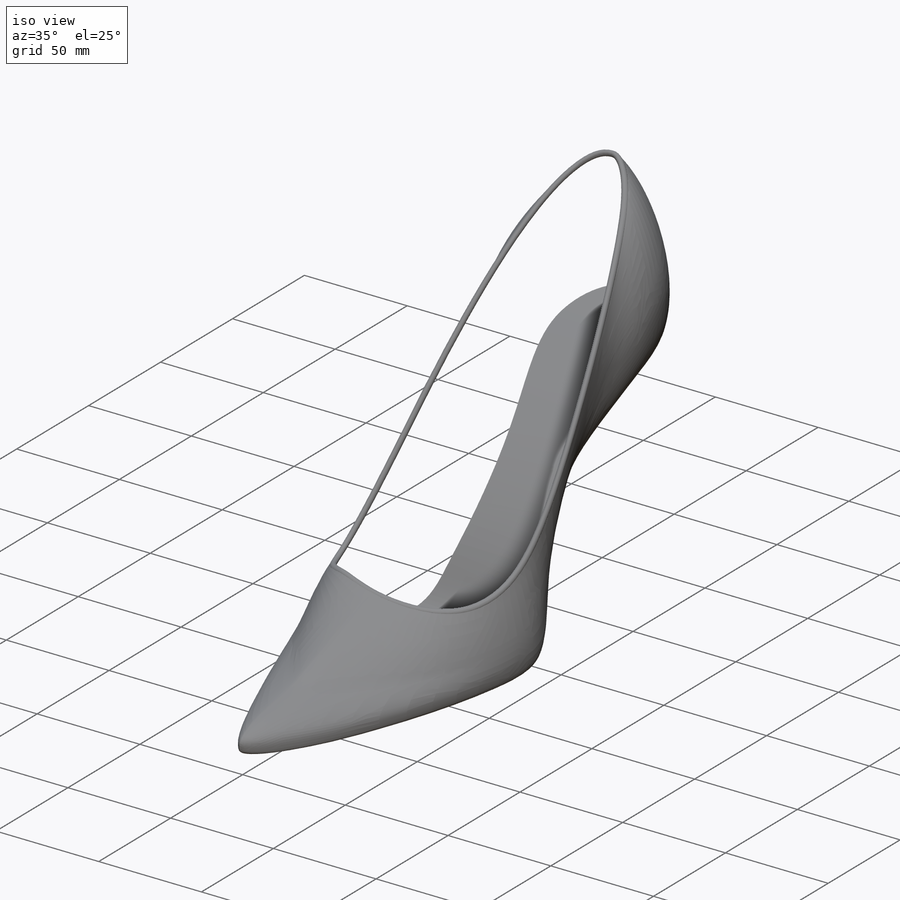
[diagram: iso view]
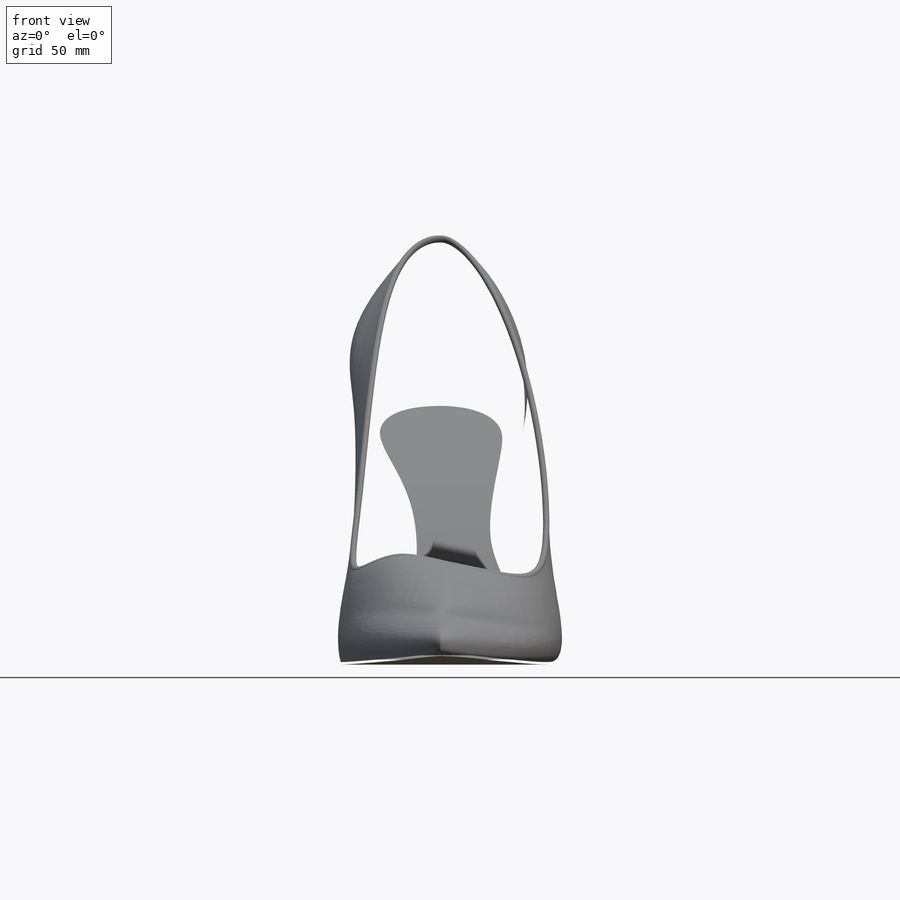
[diagram: front view]
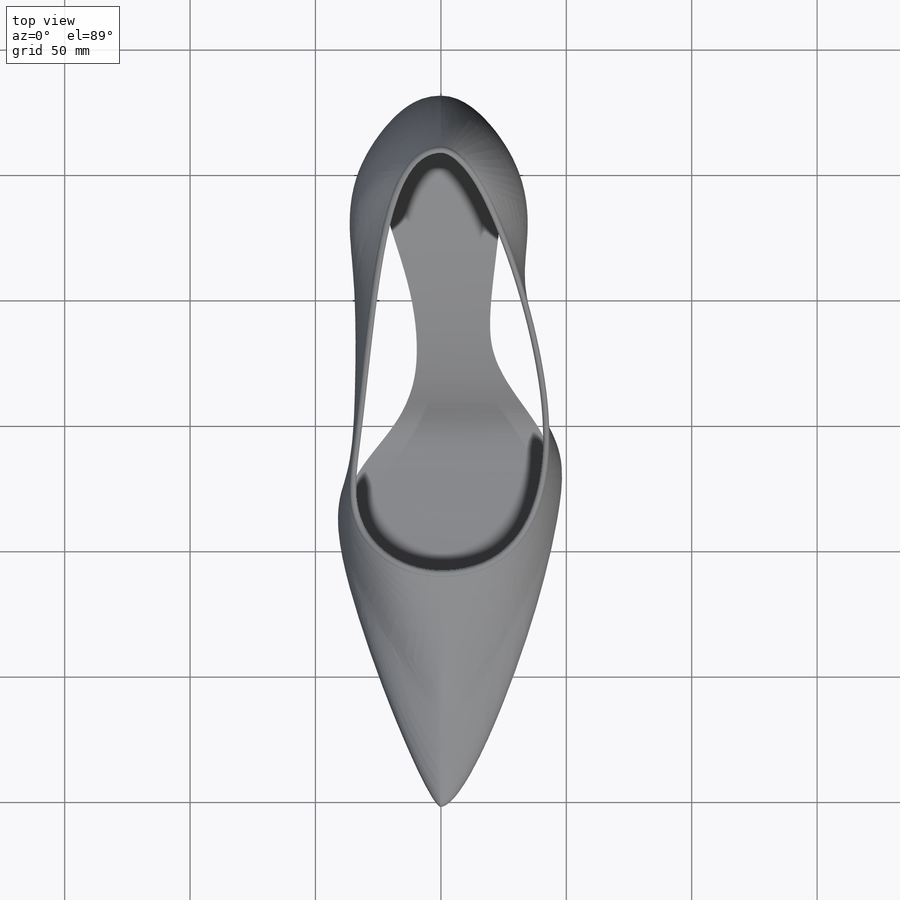
[diagram: top view]
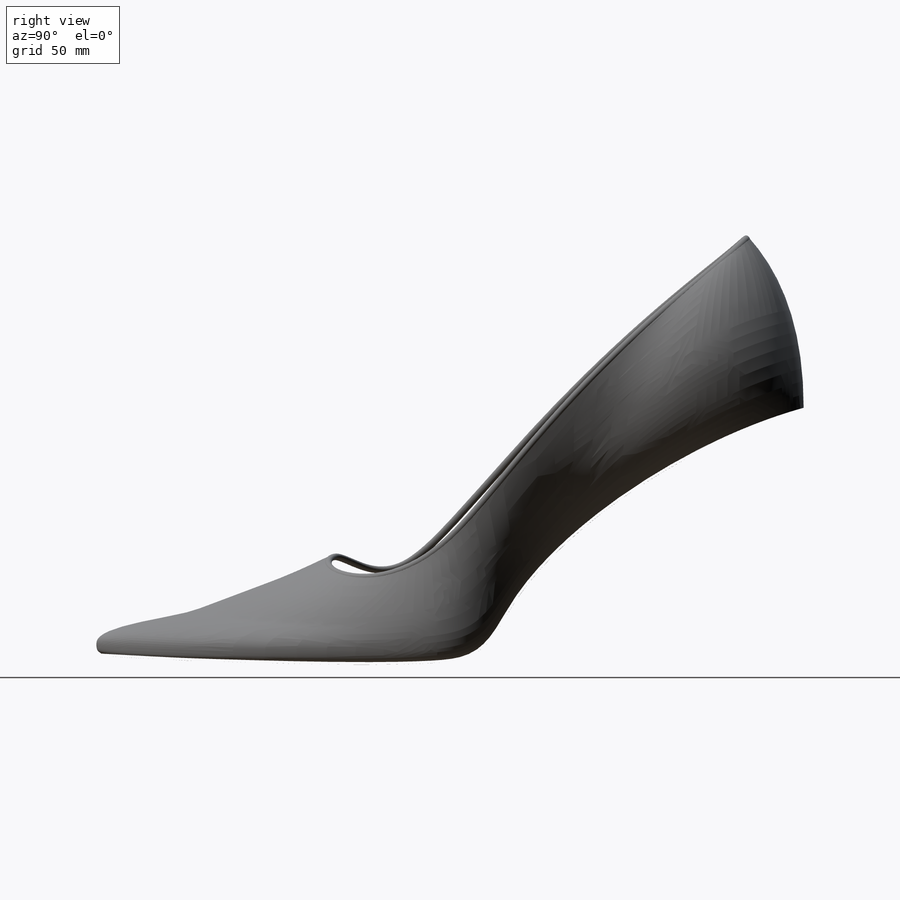
[diagram: right view]
SOLIDWORKS PART (.sldprt)
format: sldprt  version: not decoded by parser v0  size: 4,755,456 bytes
history: native  units: mm
features: sketch x41, plane x15, surface_op x5, material x1, sweep x1, delete_body x1 + 1 further entry (+16 scaffold rows collapsed)
feature tree (81):
  scaffold x16  (default folders/planes/origin — collapsed)
  material  "Material <not specified>"
  sketch  "Sketch1"  dims[D1=2.0mm D2=40.0mm D3=140.0mm D4=164.0mm D5=280.0mm D6=23.0mm D7=100.0mm]
  sketch  "Sketch2"  dims[D1=130.0mm D2=45.0mm D3=190.0mm D4=20.0mm D5=25.0mm D6=245.0mm D7=2.0mm D8=6.0mm D9=~279.999995mm]
  sketch  "Sketch3"  dims[D1=10.0mm D2=25.0mm D3=40.0mm D4=110.0mm D5=180.0mm D6=280.0mm D7=250.0mm]
  sketch  "Sketch1<3>"
  "Sole-Top"
  sketch  "Sketch1<4>"  dims[c1.D1=100.0mm c2.D1=1.0mm]
  sketch  "Baseline"
  sketch  "Sketch4"  dims[D7=5.5mm D1=90.0mm D2=105.0mm D3=39.0mm D4=33.0mm D5=168.0mm D6=168.0mm]
  sketch  "Sketch5"  dims[D1=55.0mm D2=43.0mm]
  sketch  "Sketch6"  dims[D5=5.5mm D1=3.0mm D2=7.0mm D3=3.0mm D4=2.5mm]
  sketch  "Sketch7"  dims[D1=35.0mm D2=36.0mm]
  sketch  "Sketch8"
  sketch  "Sketch9"  dims[D1=4.0mm D2=2.0mm D3=36.0mm D4=17.0mm]
  plane  "Plane1"  Offset=128mm
  sketch  "Sketch10"
  plane  "Plane2"  Offset=187mm
  sketch  "Sketch11"
  plane  "Plane3"  Offset=65mm
  sketch  "Sketch12"
  plane  "Plane4"  Offset=60mm
  plane  "Plane5"
  sketch  "SketchXX"  dims[D1=23.0mm D2=21.5mm]
  sketch  "Sketch14"  dims[D1=34.0mm D2=29.0mm]
  sketch  "Sketch15"  dims[D1=32.0mm D2=31.0mm]
  plane  "Plane6"  Offset=111mm
  sketch  "Sketch16"
  plane  "Plane7"  Offset=8mm
  sketch  "Sketch17"
  sketch  "Sketch18"
  sketch  "Sketch9<6>"
  sketch  "3DSketch1"
  sketch  "Sketch19"  dims[D1=~2.926372mm]
  sketch  "Sketch20"  dims[c1.D1=40.0mm c1.D2=25.0mm c1.D3=5.0mm c1.D4=2.5mm c1.D5=5.0mm c2.D4=2.0mm]
  plane  "Plane8"
  sketch  "Sketch21"  dims[c1.D1=~69.467118mm c1.D2=~73.391405mm c2.D1=~30.656262mm c2.D3=40.0mm c2.D2=~5.413137mm c3.D1=5.0mm c3.D2=5.0mm c4.D2=90.0deg c5.D2=2.0mm]
  plane  "Plane9"
  plane  "Plane10"
  plane  "Plane11"
  sketch  "Sketch24"  dims[D1=5.0mm]
  sketch  "Sketch25"  dims[D1=1.0mm]
  sketch  "Sketch26"  dims[c1.D1=8.0mm c1.D2=5.0mm c1.D3=12.0mm c2.D1=50.0mm]
  sketch  "Sketch29"
  plane  "Plane13"
  sketch  "Sketch28"
  sketch  "Sketch27"  dims[D1=5.0mm]
  sketch  "Sketch21<7>"
  sketch  "Sketch25<8>"
  sketch  "Sketch24<7>"
  sketch  "Sketch20<7>"
  sketch  "Sketch30"
  sketch  "Sketch31"
  sketch  "Sketch25<9>"
  plane  "Plane12"  Offset=50mm
  surface_op  "Surface-Offset1"
  surface_op  "Surface-Offset2"  Surface-Extend2=0deg
  plane  "Plane14"  Offset=2mm
  plane  "Plane15"  Offset=4mm
  surface_op  "Surface-Offset3"
  surface_op  "Surface-Offset4"
  surface_op  "Surface-Offset5"
  sketch  "3DSketch2"
  sketch  "Sketch32"  dims[D1=3.0mm D2=2.5mm]
  sweep  "Sweep3"
  delete_body  "Body-Delete1"
decode coverage: 21 of 48 modeling features carry decoded parameters; 1 rows unclassified (native names shown)
note: ~ marks probable driven/reference dimensions
note: suppression state not decoded; provenance and decode notes live in map.json
